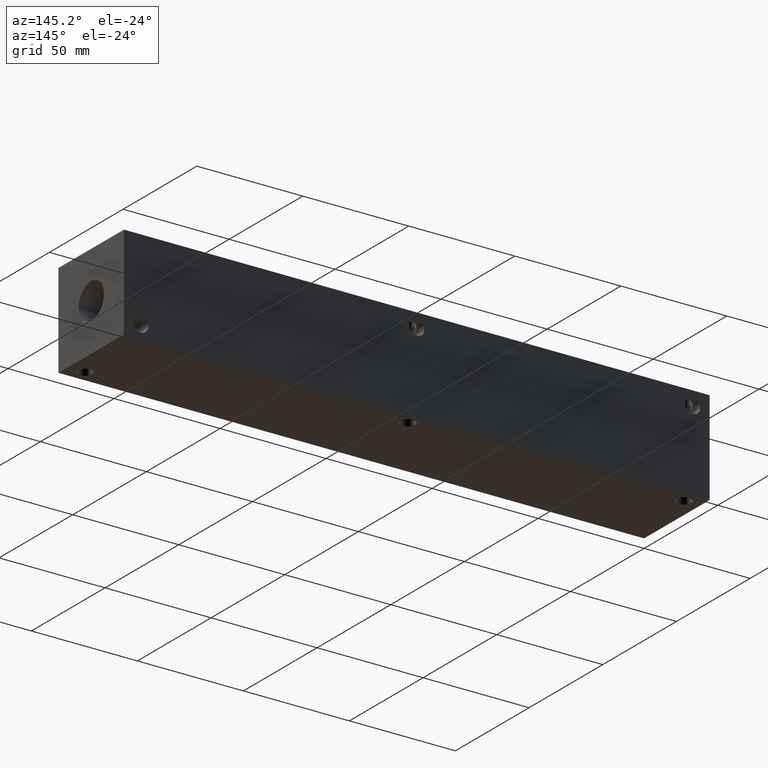
[diagram: clean part render]
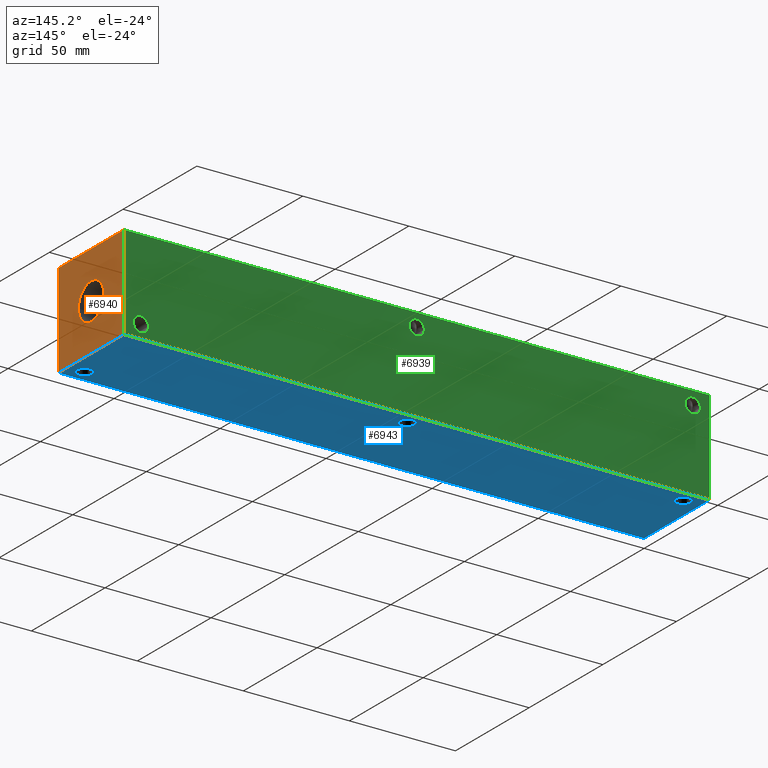
[diagram: same view with three faces highlighted in distinct colors, each labeled with its STEP entity id]
A machine part, auxiliary view with three faces highlighted in distinct colors.
Their STEP definitions:

[orange] entity #6940 — the highlighted planar face has unit normal (1, 0, 0).
#127=CIRCLE('',#7281,8.6487);
#128=CIRCLE('',#7282,8.6487);
#187=FACE_BOUND('',#1167,.T.);
#411=PLANE('',#7297);
#763=FACE_OUTER_BOUND('',#1166,.T.);
#1166=EDGE_LOOP('',(#6179,#6180,#6181,#6182));
#1167=EDGE_LOOP('',(#6183,#6184));
#1427=LINE('',#10656,#2101);
#1847=LINE('',#11832,#2521);
#1848=LINE('',#11835,#2522);
#1849=LINE('',#11836,#2523);
#2101=VECTOR('',#7683,10.);
#2521=VECTOR('',#8651,10.);
#2522=VECTOR('',#8654,10.);
#2523=VECTOR('',#8655,10.);
#2998=VERTEX_POINT('',#10653);
#2999=VERTEX_POINT('',#10655);
#3341=VERTEX_POINT('',#11794);
#3342=VERTEX_POINT('',#11795);
#3353=VERTEX_POINT('',#11830);
#3354=VERTEX_POINT('',#11834);
#3779=EDGE_CURVE('',#2998,#2999,#1427,.T.);
#4283=EDGE_CURVE('',#3341,#3342,#127,.T.);
#4284=EDGE_CURVE('',#3342,#3341,#128,.T.);
#4301=EDGE_CURVE('',#3353,#2999,#1847,.T.);
#4302=EDGE_CURVE('',#3354,#3353,#1848,.T.);
#4303=EDGE_CURVE('',#3354,#2998,#1849,.T.);
#6179=ORIENTED_EDGE('',*,*,#4302,.T.);
#6180=ORIENTED_EDGE('',*,*,#4301,.T.);
#6181=ORIENTED_EDGE('',*,*,#3779,.F.);
#6182=ORIENTED_EDGE('',*,*,#4303,.F.);
#6183=ORIENTED_EDGE('',*,*,#4283,.T.);
#6184=ORIENTED_EDGE('',*,*,#4284,.T.);
#6940=ADVANCED_FACE('',(#763,#187),#411,.T.);
#7281=AXIS2_PLACEMENT_3D('',#11796,#8610,#8611);
#7282=AXIS2_PLACEMENT_3D('',#11797,#8612,#8613);
#7297=AXIS2_PLACEMENT_3D('',#11833,#8652,#8653);
#7683=DIRECTION('',(0.,1.,0.));
#8610=DIRECTION('center_axis',(-1.,0.,0.));
#8611=DIRECTION('ref_axis',(0.,1.,0.));
#8612=DIRECTION('center_axis',(-1.,0.,0.));
#8613=DIRECTION('ref_axis',(0.,1.,0.));
#8651=DIRECTION('',(0.,0.,1.));
#8652=DIRECTION('center_axis',(1.,0.,0.));
#8653=DIRECTION('ref_axis',(0.,1.,0.));
#8654=DIRECTION('',(0.,1.,0.));
#8655=DIRECTION('',(0.,0.,1.));
#10653=CARTESIAN_POINT('',(276.225,0.,44.45));
#10655=CARTESIAN_POINT('',(276.225,44.45,44.45));
#10656=CARTESIAN_POINT('',(276.225,0.,44.45));
#11794=CARTESIAN_POINT('',(276.225,30.8737,22.225));
#11795=CARTESIAN_POINT('',(276.225,13.5763,22.225));
#11796=CARTESIAN_POINT('Origin',(276.225,22.225,22.225));
#11797=CARTESIAN_POINT('Origin',(276.225,22.225,22.225));
#11830=CARTESIAN_POINT('',(276.225,44.45,0.));
#11832=CARTESIAN_POINT('',(276.225,44.45,0.));
#11833=CARTESIAN_POINT('Origin',(276.225,0.,0.));
#11834=CARTESIAN_POINT('',(276.225,0.,0.));
#11835=CARTESIAN_POINT('',(276.225,0.,0.));
#11836=CARTESIAN_POINT('',(276.225,0.,0.));

[blue] entity #6943 — the highlighted planar face has unit normal (0, 0, 1).
#89=CIRCLE('',#7214,3.5687);
#90=CIRCLE('',#7216,3.5687);
#91=CIRCLE('',#7218,3.5687);
#191=FACE_BOUND('',#1174,.T.);
#192=FACE_BOUND('',#1175,.T.);
#193=FACE_BOUND('',#1176,.T.);
#414=PLANE('',#7300);
#766=FACE_OUTER_BOUND('',#1173,.T.);
#1173=EDGE_LOOP('',(#6198,#6199,#6200,#6201));
#1174=EDGE_LOOP('',(#6202));
#1175=EDGE_LOOP('',(#6203));
#1176=EDGE_LOOP('',(#6204));
#1843=LINE('',#11826,#2517);
#1846=LINE('',#11831,#2520);
#1848=LINE('',#11835,#2522);
#1850=LINE('',#11838,#2524);
#2517=VECTOR('',#8645,10.);
#2520=VECTOR('',#8650,10.);
#2522=VECTOR('',#8654,10.);
#2524=VECTOR('',#8658,10.);
#3296=VERTEX_POINT('',#11660);
#3297=VERTEX_POINT('',#11664);
#3298=VERTEX_POINT('',#11668);
#3351=VERTEX_POINT('',#11824);
#3352=VERTEX_POINT('',#11825);
#3353=VERTEX_POINT('',#11830);
#3354=VERTEX_POINT('',#11834);
#4224=EDGE_CURVE('',#3296,#3296,#89,.T.);
#4226=EDGE_CURVE('',#3297,#3297,#90,.T.);
#4228=EDGE_CURVE('',#3298,#3298,#91,.T.);
#4297=EDGE_CURVE('',#3351,#3352,#1843,.T.);
#4300=EDGE_CURVE('',#3353,#3351,#1846,.T.);
#4302=EDGE_CURVE('',#3354,#3353,#1848,.T.);
#4304=EDGE_CURVE('',#3352,#3354,#1850,.T.);
#6198=ORIENTED_EDGE('',*,*,#4304,.F.);
#6199=ORIENTED_EDGE('',*,*,#4297,.F.);
#6200=ORIENTED_EDGE('',*,*,#4300,.F.);
#6201=ORIENTED_EDGE('',*,*,#4302,.F.);
#6202=ORIENTED_EDGE('',*,*,#4224,.T.);
#6203=ORIENTED_EDGE('',*,*,#4226,.T.);
#6204=ORIENTED_EDGE('',*,*,#4228,.T.);
#6943=ADVANCED_FACE('',(#766,#191,#192,#193),#414,.F.);
#7214=AXIS2_PLACEMENT_3D('',#11662,#8455,#8456);
#7216=AXIS2_PLACEMENT_3D('',#11666,#8460,#8461);
#7218=AXIS2_PLACEMENT_3D('',#11670,#8465,#8466);
#7300=AXIS2_PLACEMENT_3D('',#11840,#8661,#8662);
#8455=DIRECTION('center_axis',(0.,0.,1.));
#8456=DIRECTION('ref_axis',(1.,0.,0.));
#8460=DIRECTION('center_axis',(0.,0.,1.));
#8461=DIRECTION('ref_axis',(1.,0.,0.));
#8465=DIRECTION('center_axis',(0.,0.,1.));
#8466=DIRECTION('ref_axis',(1.,0.,0.));
#8645=DIRECTION('',(0.,-1.,0.));
#8650=DIRECTION('',(-1.,0.,0.));
#8654=DIRECTION('',(0.,1.,0.));
#8658=DIRECTION('',(1.,0.,0.));
#8661=DIRECTION('center_axis',(0.,0.,1.));
#8662=DIRECTION('ref_axis',(1.,0.,0.));
#11660=CARTESIAN_POINT('',(134.5565,38.1,0.));
#11662=CARTESIAN_POINT('Origin',(138.1252,38.1,0.));
#11664=CARTESIAN_POINT('',(4.3561,38.1,0.));
#11666=CARTESIAN_POINT('Origin',(7.9248,38.1,0.));
#11668=CARTESIAN_POINT('',(264.7061,6.35,0.));
#11670=CARTESIAN_POINT('Origin',(268.2748,6.35,0.));
#11824=CARTESIAN_POINT('',(0.,44.45,0.));
#11825=CARTESIAN_POINT('',(0.,0.,0.));
#11826=CARTESIAN_POINT('',(0.,44.45,0.));
#11830=CARTESIAN_POINT('',(276.225,44.45,0.));
#11831=CARTESIAN_POINT('',(276.225,44.45,0.));
#11834=CARTESIAN_POINT('',(276.225,0.,0.));
#11835=CARTESIAN_POINT('',(276.225,0.,0.));
#11838=CARTESIAN_POINT('',(0.,0.,0.));
#11840=CARTESIAN_POINT('Origin',(138.1125,22.225,0.));

[green] entity #6939 — the highlighted planar face has unit normal (0, 1, 0).
#82=CIRCLE('',#7191,3.5687);
#85=CIRCLE('',#7200,3.5687);
#88=CIRCLE('',#7209,3.5687);
#184=FACE_BOUND('',#1163,.T.);
#185=FACE_BOUND('',#1164,.T.);
#186=FACE_BOUND('',#1165,.T.);
#410=PLANE('',#7296);
#762=FACE_OUTER_BOUND('',#1162,.T.);
#1162=EDGE_LOOP('',(#6172,#6173,#6174,#6175));
#1163=EDGE_LOOP('',(#6176));
#1164=EDGE_LOOP('',(#6177));
#1165=EDGE_LOOP('',(#6178));
#1428=LINE('',#10658,#2102);
#1845=LINE('',#11828,#2519);
#1846=LINE('',#11831,#2520);
#1847=LINE('',#11832,#2521);
#2102=VECTOR('',#7684,10.);
#2519=VECTOR('',#8647,10.);
#2520=VECTOR('',#8650,10.);
#2521=VECTOR('',#8651,10.);
#2999=VERTEX_POINT('',#10655);
#3000=VERTEX_POINT('',#10657);
#3285=VERTEX_POINT('',#11618);
#3290=VERTEX_POINT('',#11634);
#3295=VERTEX_POINT('',#11650);
#3351=VERTEX_POINT('',#11824);
#3353=VERTEX_POINT('',#11830);
#3780=EDGE_CURVE('',#2999,#3000,#1428,.T.);
#4201=EDGE_CURVE('',#3285,#3285,#82,.T.);
#4210=EDGE_CURVE('',#3290,#3290,#85,.T.);
#4219=EDGE_CURVE('',#3295,#3295,#88,.T.);
#4299=EDGE_CURVE('',#3351,#3000,#1845,.T.);
#4300=EDGE_CURVE('',#3353,#3351,#1846,.T.);
#4301=EDGE_CURVE('',#3353,#2999,#1847,.T.);
#6172=ORIENTED_EDGE('',*,*,#4300,.T.);
#6173=ORIENTED_EDGE('',*,*,#4299,.T.);
#6174=ORIENTED_EDGE('',*,*,#3780,.F.);
#6175=ORIENTED_EDGE('',*,*,#4301,.F.);
#6176=ORIENTED_EDGE('',*,*,#4201,.T.);
#6177=ORIENTED_EDGE('',*,*,#4210,.T.);
#6178=ORIENTED_EDGE('',*,*,#4219,.T.);
#6939=ADVANCED_FACE('',(#762,#184,#185,#186),#410,.T.);
#7191=AXIS2_PLACEMENT_3D('',#11620,#8401,#8402);
#7200=AXIS2_PLACEMENT_3D('',#11636,#8421,#8422);
#7209=AXIS2_PLACEMENT_3D('',#11652,#8441,#8442);
#7296=AXIS2_PLACEMENT_3D('',#11829,#8648,#8649);
#7684=DIRECTION('',(-1.,0.,0.));
#8401=DIRECTION('center_axis',(0.,-1.,0.));
#8402=DIRECTION('ref_axis',(1.,0.,0.));
#8421=DIRECTION('center_axis',(0.,-1.,0.));
#8422=DIRECTION('ref_axis',(1.,0.,0.));
#8441=DIRECTION('center_axis',(0.,-1.,0.));
#8442=DIRECTION('ref_axis',(1.,0.,0.));
#8647=DIRECTION('',(0.,0.,1.));
#8648=DIRECTION('center_axis',(0.,1.,0.));
#8649=DIRECTION('ref_axis',(-1.,0.,0.));
#8650=DIRECTION('',(-1.,0.,0.));
#8651=DIRECTION('',(0.,0.,1.));
#10655=CARTESIAN_POINT('',(276.225,44.45,44.45));
#10657=CARTESIAN_POINT('',(0.,44.45,44.45));
#10658=CARTESIAN_POINT('',(276.225,44.45,44.45));
#11618=CARTESIAN_POINT('',(134.5565,44.45,38.1));
#11620=CARTESIAN_POINT('Origin',(138.1252,44.45,38.1));
#11634=CARTESIAN_POINT('',(4.3561,44.45,38.1));
#11636=CARTESIAN_POINT('Origin',(7.9248,44.45,38.1));
#11650=CARTESIAN_POINT('',(264.7061,44.45,6.35));
#11652=CARTESIAN_POINT('Origin',(268.2748,44.45,6.35));
#11824=CARTESIAN_POINT('',(0.,44.45,0.));
#11828=CARTESIAN_POINT('',(0.,44.45,0.));
#11829=CARTESIAN_POINT('Origin',(276.225,44.45,0.));
#11830=CARTESIAN_POINT('',(276.225,44.45,0.));
#11831=CARTESIAN_POINT('',(276.225,44.45,0.));
#11832=CARTESIAN_POINT('',(276.225,44.45,0.));